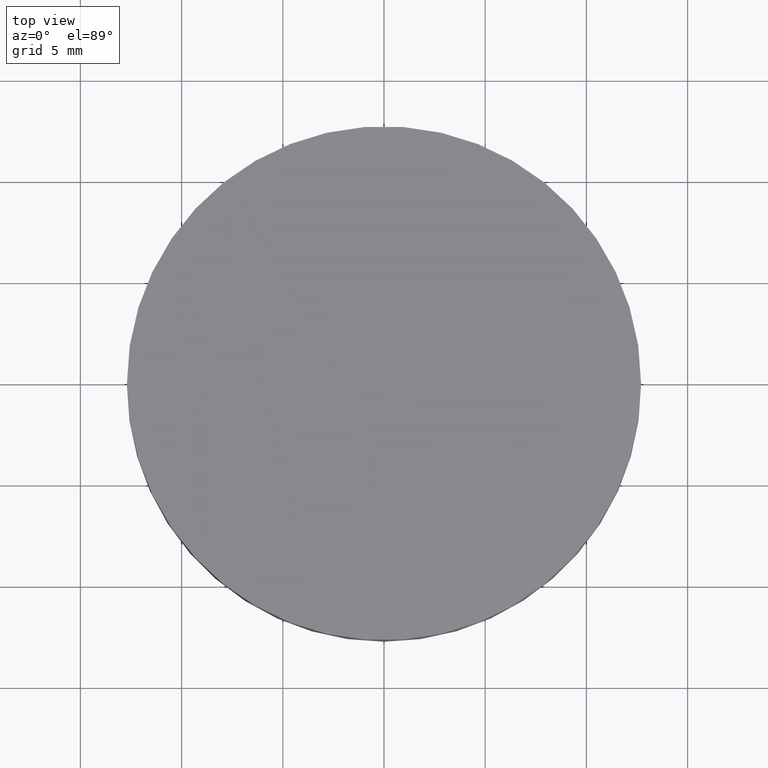
[diagram: clean part render]
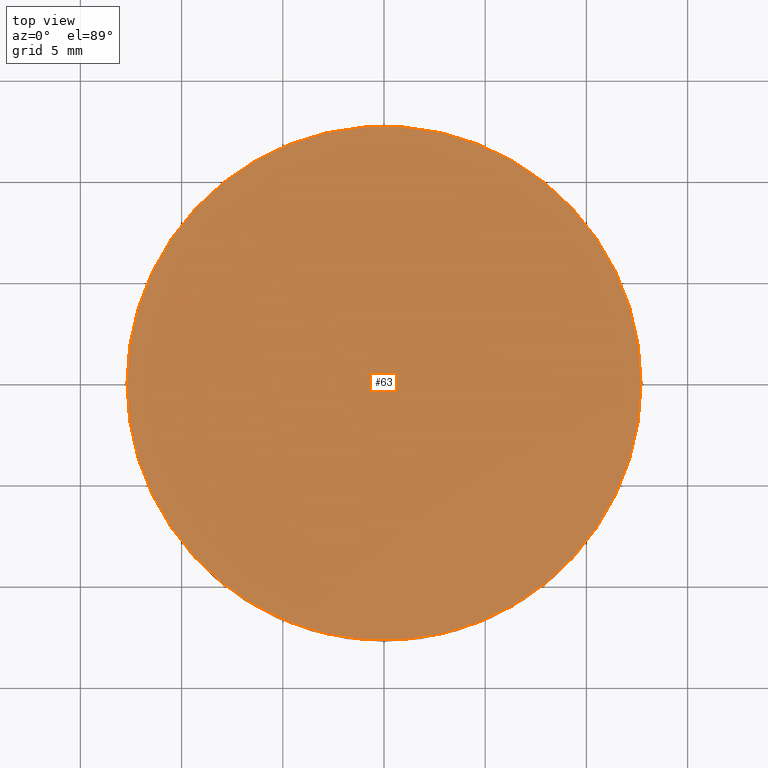
[diagram: same view with one face highlighted and labeled with its STEP entity id]
A machine part, top view. The second image highlights one B-rep face of the part: STEP entity #63.
In plain terms, the highlighted planar face has unit normal (0, 0, 1).
Its self-contained STEP definition (entity closure, byte-faithful):
#9 = CIRCLE ( 'NONE', #68, 12.69999999999999900 ) ;
#26 = EDGE_LOOP ( 'NONE', ( #107, #221 ) ) ;
#61 = CARTESIAN_POINT ( 'NONE',  ( 12.69999999999999900, 2.442490654175340100E-015, 3.600000000000001000 ) ) ;
#63 = ADVANCED_FACE ( 'NONE', ( #152 ), #188, .T. ) ;
#68 = AXIS2_PLACEMENT_3D ( 'NONE', #215, #98, #141 ) ;
#82 = EDGE_CURVE ( 'NONE', #198, #128, #9, .T. ) ;
#98 = DIRECTION ( 'NONE',  ( -0.0000000000000000000, -0.0000000000000000000, -1.000000000000000000 ) ) ;
#107 = ORIENTED_EDGE ( 'NONE', *, *, #82, .F. ) ;
#110 = AXIS2_PLACEMENT_3D ( 'NONE', #175, #120, #191 ) ;
#120 = DIRECTION ( 'NONE',  ( -0.0000000000000000000, -0.0000000000000000000, -1.000000000000000000 ) ) ;
#128 = VERTEX_POINT ( 'NONE', #176 ) ;
#132 = CARTESIAN_POINT ( 'NONE',  ( 0.0000000000000000000, 26.11199999999999800, 3.600000000000000500 ) ) ;
#141 = DIRECTION ( 'NONE',  ( 1.000000000000000000, 0.0000000000000000000, 0.0000000000000000000 ) ) ;
#152 = FACE_OUTER_BOUND ( 'NONE', #26, .T. ) ;
#164 = CIRCLE ( 'NONE', #110, 12.69999999999999900 ) ;
#175 = CARTESIAN_POINT ( 'NONE',  ( 4.996003610813200500E-016, 2.442490654175340100E-015, 3.600000000000001000 ) ) ;
#176 = CARTESIAN_POINT ( 'NONE',  ( -12.69999999999999900, 3.997792089092478900E-015, 3.600000000000001000 ) ) ;
#188 = PLANE ( 'NONE',  #201 ) ;
#191 = DIRECTION ( 'NONE',  ( 1.000000000000000000, 0.0000000000000000000, 0.0000000000000000000 ) ) ;
#198 = VERTEX_POINT ( 'NONE', #61 ) ;
#201 = AXIS2_PLACEMENT_3D ( 'NONE', #132, #209, #228 ) ;
#209 = DIRECTION ( 'NONE',  ( 0.0000000000000000000, 0.0000000000000000000, 1.000000000000000000 ) ) ;
#215 = CARTESIAN_POINT ( 'NONE',  ( 4.996003610813200500E-016, 2.442490654175340100E-015, 3.600000000000001000 ) ) ;
#221 = ORIENTED_EDGE ( 'NONE', *, *, #227, .F. ) ;
#227 = EDGE_CURVE ( 'NONE', #128, #198, #164, .T. ) ;
#228 = DIRECTION ( 'NONE',  ( 1.000000000000000000, 0.0000000000000000000, -0.0000000000000000000 ) ) ;